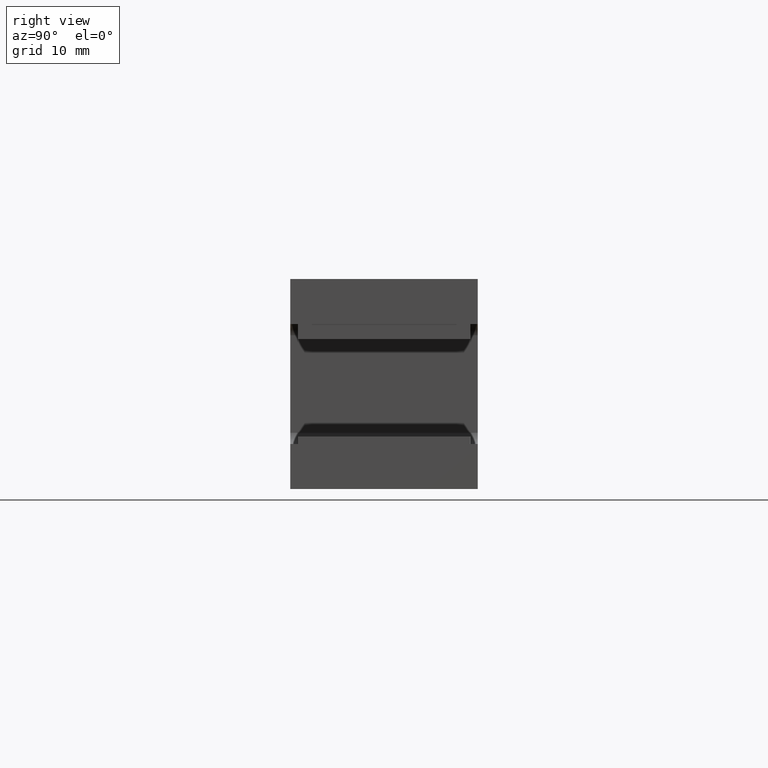
[diagram: clean part render]
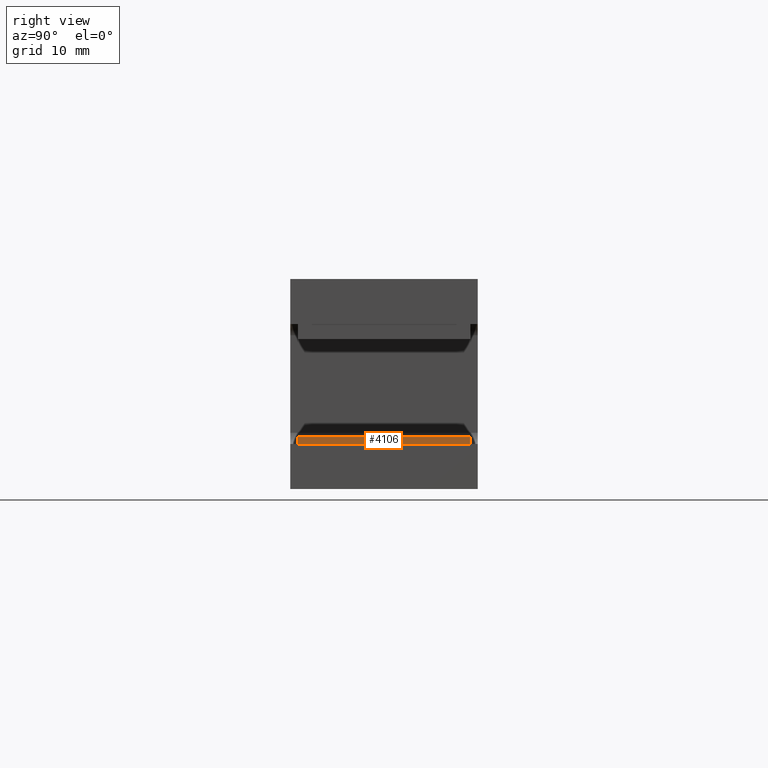
[diagram: same view with one face highlighted and labeled with its STEP entity id]
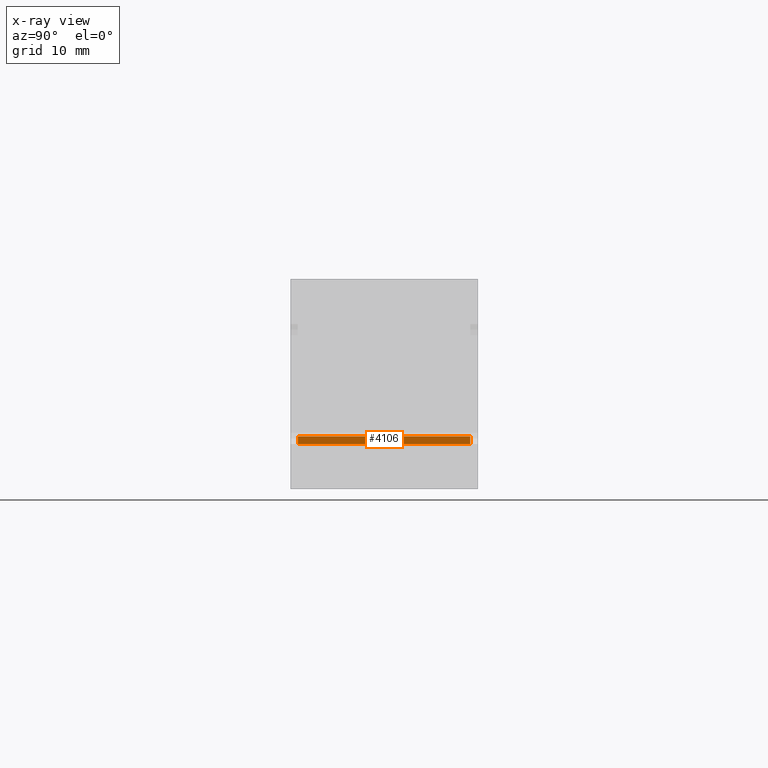
[diagram: x-ray of the same camera — body ghosted, the highlighted face saturated]
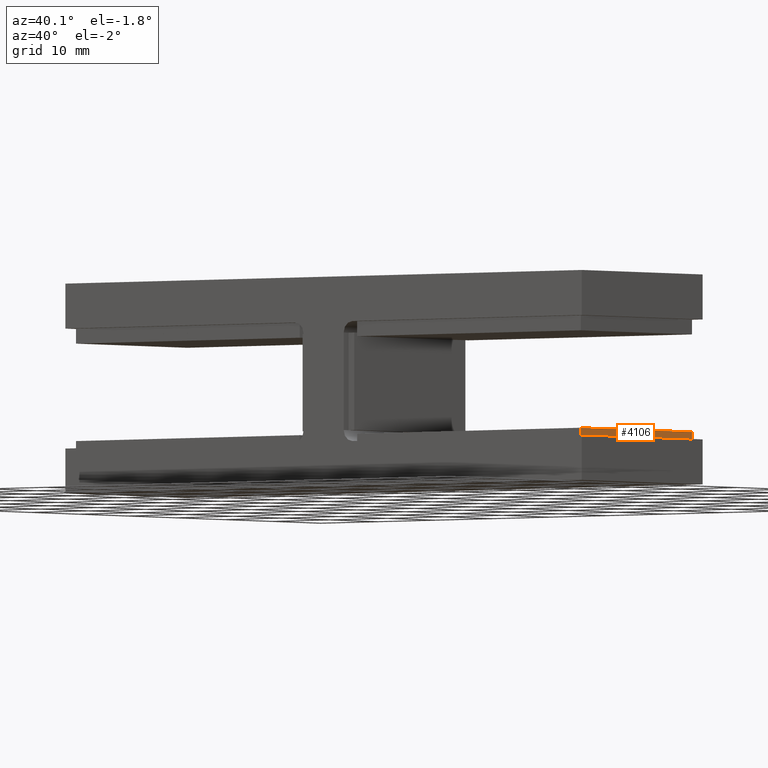
[diagram: same view with one face highlighted and labeled with its STEP entity id]
A machine part, right view. The second image highlights one B-rep face of the part: STEP entity #4106.
The next image is the same camera in x-ray: the body ghosted, the highlighted face saturated — about 0% of this face is hidden behind the body in this view.
A second angle (auxiliary view) of the same face is appended — the face is thin or edge-on in the first view.
In plain terms, the highlighted planar face has unit normal (-1, 0, 0).
Its self-contained STEP definition (entity closure, byte-faithful):
#222 = DIRECTION ( 'NONE',  ( -0.000000000000000000, -0.000000000000000000, -1.000000000000000000 ) ) ;
#865 = DIRECTION ( 'NONE',  ( 1.508455196501571429E-16, 1.000000000000000000, -0.000000000000000000 ) ) ;
#1032 = LINE ( 'NONE', #14035, #21278 ) ;
#1066 = EDGE_CURVE ( 'NONE', #18917, #4810, #4486, .T. ) ;
#1220 = DIRECTION ( 'NONE',  ( -1.508455196501571429E-16, -1.000000000000000000, 0.000000000000000000 ) ) ;
#2314 = LINE ( 'NONE', #9427, #5739 ) ;
#3268 = EDGE_CURVE ( 'NONE', #4810, #7066, #18715, .T. ) ;
#4106 = ADVANCED_FACE ( 'NONE', ( #10055 ), #13286, .F. ) ;
#4343 = CARTESIAN_POINT ( 'NONE',  ( 19.49999999999998934, -11.50000000000000178, 0.5000000000000004441 ) ) ;
#4486 = LINE ( 'NONE', #13206, #15803 ) ;
#4810 = VERTEX_POINT ( 'NONE', #14596 ) ;
#5236 = CARTESIAN_POINT ( 'NONE',  ( 19.50000000000000355, 11.50000000000000000, 0.5000000000000004441 ) ) ;
#5739 = VECTOR ( 'NONE', #865, 1000.000000000000000 ) ;
#7066 = VERTEX_POINT ( 'NONE', #15765 ) ;
#9427 = CARTESIAN_POINT ( 'NONE',  ( 19.50000000000000355, 11.50000000000000000, -0.5000000000000004441 ) ) ;
#10055 = FACE_OUTER_BOUND ( 'NONE', #10685, .T. ) ;
#10270 = CARTESIAN_POINT ( 'NONE',  ( 19.49999999999998934, -11.50000000000000178, -0.5000000000000004441 ) ) ;
#10685 = EDGE_LOOP ( 'NONE', ( #13347, #20045, #10980, #18834 ) ) ;
#10980 = ORIENTED_EDGE ( 'NONE', *, *, #1066, .F. ) ;
#11559 = VERTEX_POINT ( 'NONE', #10270 ) ;
#13057 = CARTESIAN_POINT ( 'NONE',  ( 19.50000000000000355, 11.50000000000000000, 0.5000000000000004441 ) ) ;
#13206 = CARTESIAN_POINT ( 'NONE',  ( 19.50000000000000355, 11.50000000000000000, 0.5000000000000004441 ) ) ;
#13286 = PLANE ( 'NONE',  #21511 ) ;
#13347 = ORIENTED_EDGE ( 'NONE', *, *, #20907, .T. ) ;
#14035 = CARTESIAN_POINT ( 'NONE',  ( 19.49999999999998934, -11.50000000000000178, 0.5000000000000004441 ) ) ;
#14596 = CARTESIAN_POINT ( 'NONE',  ( 19.50000000000000355, 11.50000000000000000, 0.5000000000000004441 ) ) ;
#14832 = DIRECTION ( 'NONE',  ( 1.508455196501571429E-16, 1.000000000000000000, -0.000000000000000000 ) ) ;
#15765 = CARTESIAN_POINT ( 'NONE',  ( 19.50000000000000355, 11.50000000000000000, -0.5000000000000004441 ) ) ;
#15803 = VECTOR ( 'NONE', #14832, 1000.000000000000000 ) ;
#17181 = DIRECTION ( 'NONE',  ( -0.000000000000000000, -0.000000000000000000, -1.000000000000000000 ) ) ;
#18715 = LINE ( 'NONE', #5236, #19760 ) ;
#18834 = ORIENTED_EDGE ( 'NONE', *, *, #19603, .T. ) ;
#18917 = VERTEX_POINT ( 'NONE', #4343 ) ;
#19603 = EDGE_CURVE ( 'NONE', #18917, #11559, #1032, .T. ) ;
#19760 = VECTOR ( 'NONE', #222, 1000.000000000000000 ) ;
#20045 = ORIENTED_EDGE ( 'NONE', *, *, #3268, .F. ) ;
#20907 = EDGE_CURVE ( 'NONE', #11559, #7066, #2314, .T. ) ;
#21278 = VECTOR ( 'NONE', #17181, 1000.000000000000000 ) ;
#21351 = DIRECTION ( 'NONE',  ( -1.000000000000000000, 1.508455196501571429E-16, 0.000000000000000000 ) ) ;
#21511 = AXIS2_PLACEMENT_3D ( 'NONE', #13057, #21351, #1220 ) ;